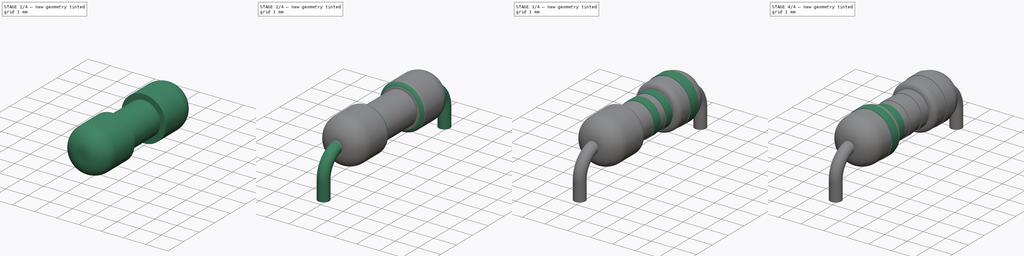
[diagram: build sequence overview — one tinted view per stage of 4, left to right]
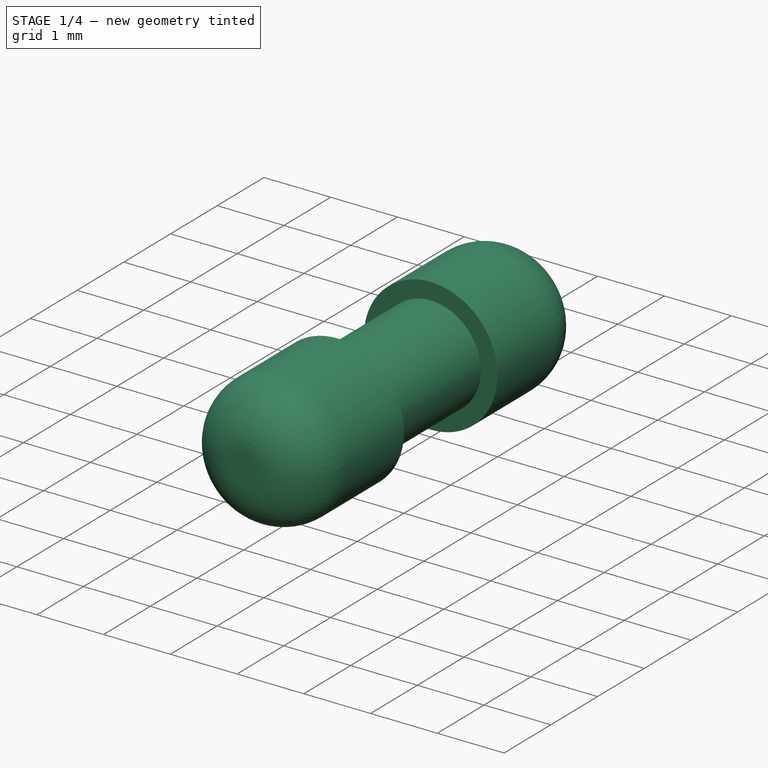
[diagram: stage 1 of 4 — iso view after this stage's code; geometry added in this stage tinted green]
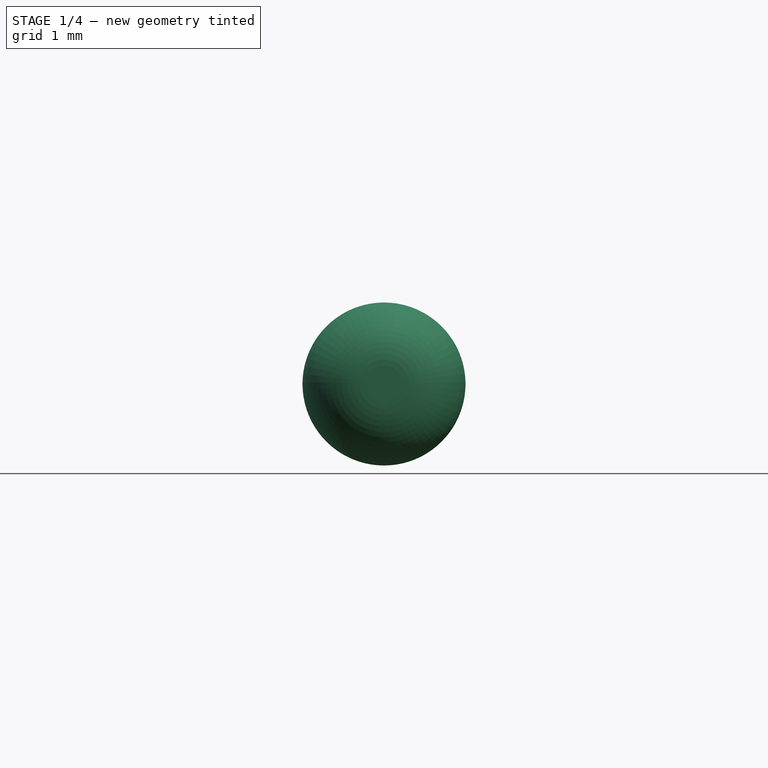
[diagram: stage 1 of 4 — front view after this stage's code; geometry added in this stage tinted green]
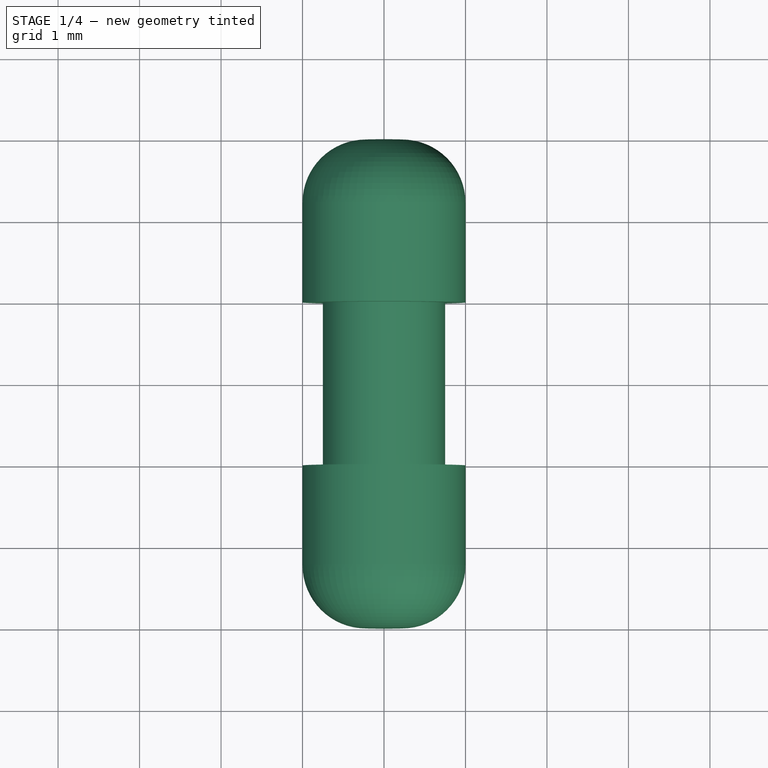
[diagram: stage 1 of 4 — top view after this stage's code; geometry added in this stage tinted green]
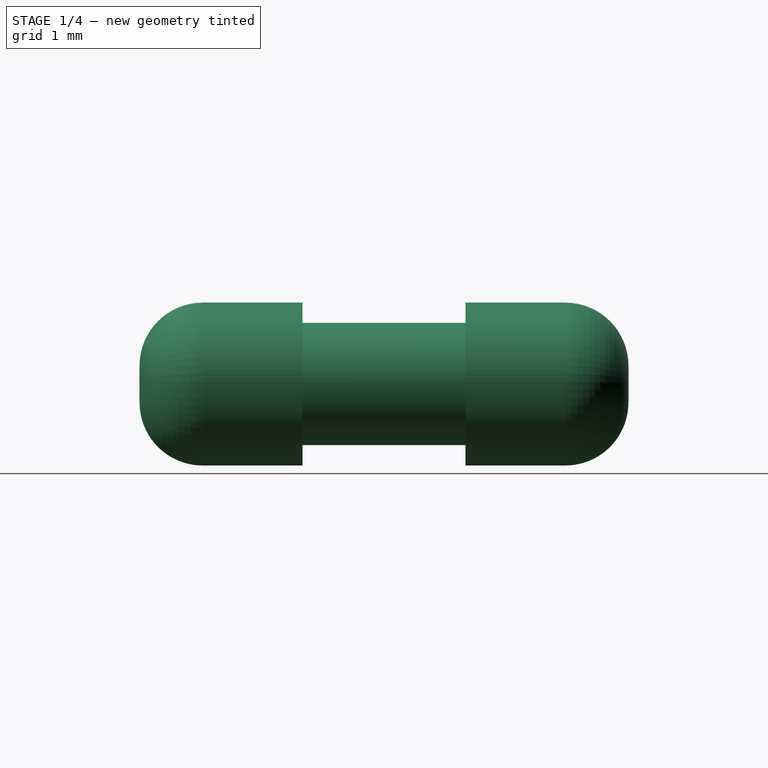
[diagram: stage 1 of 4 — right view after this stage's code; geometry added in this stage tinted green]
FCSTD DOCUMENT  (FreeCAD 0.19R16945 (Git))
Label: Resistors MF Simple
License: All rights reserved
LicenseURL: http://en.wikipedia.org/wiki/All_rights_reserved
objects: Sketcher::SketchObject×8, PartDesign::Body×7, PartDesign::Pad×5, PartDesign::Mirrored×2, PartDesign::Revolution×1, PartDesign::AdditivePipe×1, Spreadsheet::Sheet×1, PartDesign::Fillet×1
note: 32 computed .brp shape members not serialized (recipe doc carries the construction recipe); baked Part::Feature solids carry a one-line shape summary decoded from their .brp

FEATURE [PartDesign::Body] Body006  label="Ring_5_Brown_1%"
  Group = -> [Sketch007,Pad004]
  Origin = -> Origin006
  Tip = -> Pad004
FEATURE [Sketcher::SketchObject] Sketch044
  AttachmentOffset = pos=(0,0,0) rot=(0,0,1;3.14159rad)
  MapMode = 5
  Placement = pos=(0,0,0) rot=(0.57735,-0.57735,0.57735;4.18879rad)
  Support = -> [YZ_Plane071]
  expr: Constraints[18] = Spreadsheet.lead_diameter / 2 - 0.025mm
  expr: Constraints[13] = Spreadsheet.body_length_thick
  expr: Constraints[11] = Spreadsheet.body_diameter_thick / 2
  expr: Constraints[10] = Spreadsheet.body_diameter_mid / 2
  expr: Constraints[12] = Spreadsheet.body_length_mid / 2
  sketch-geometry (7):
    g0: LineSegment StartX=0 StartY=0 StartZ=0 EndX=0 EndY=0.75 EndZ=0
    g1: LineSegment StartX=0 StartY=0.75 StartZ=0 EndX=-1 EndY=0.75 EndZ=0
    g2: LineSegment StartX=-1 StartY=0.75 StartZ=0 EndX=-1 EndY=1 EndZ=0
    g3: LineSegment StartX=-1 StartY=1 StartZ=0 EndX=-2.225 EndY=1 EndZ=0
    g4: LineSegment StartX=-3 StartY=0 StartZ=0 EndX=0 EndY=0 EndZ=0
    g5: LineSegment StartX=-3 StartY=0 StartZ=0 EndX=-3 EndY=0.225 EndZ=0
    g6: ArcOfCircle CenterX=-2.225 CenterY=0.225 CenterZ=0 NormalX=0 NormalY=0 NormalZ=1 AngleXU=0 Radius=0.775 StartAngle=1.5708 EndAngle=3.14159
  constraints (19):
    c: Coincident(g-1,g0)
    c: PointOnObject(g0,g-2)
    c: Coincident(g0,g1)
    c: Horizontal(g1)
    c: Coincident(g1,g2)
    c: Vertical(g2)
    c: Coincident(g2,g3)
    c: Horizontal(g3)
    c: Coincident(g4,g0)
    c: Horizontal(g4)
    c: DistanceY(g0,g0) = 0.75
    c: DistanceY(g0,g2) = 1
    c: DistanceX(g1,g1) = 1
    c: DistanceX(g4,g2) = 2
    c: Coincident(g4,g5)
    c: Vertical(g5)
    c: Tangent(g3,g6) = -1.5708
    c: Tangent(g5,g6) = 1.5708
    c: DistanceY(g4,g5) = 0.225
FEATURE [PartDesign::Revolution] Revolution009
  Angle = 360
  Axis = (1e-16,1,-1e-16)
  Base = (0,0,0)
  Placement = pos=(0,0,0) rot=(0.57735,0.57735,0.57735;2.0944rad)
  Profile = -> Sketch044
  ReferenceAxis = -> Y_Axis071
  Refine = true
FEATURE [PartDesign::Mirrored] Mirrored013
  BaseFeature = -> Revolution009
  MirrorPlane = -> XZ_Plane071
  Originals = -> [Revolution009]
  Placement = pos=(0,0,0) rot=(0.57735,0.57735,0.57735;2.0944rad)
  Refine = true
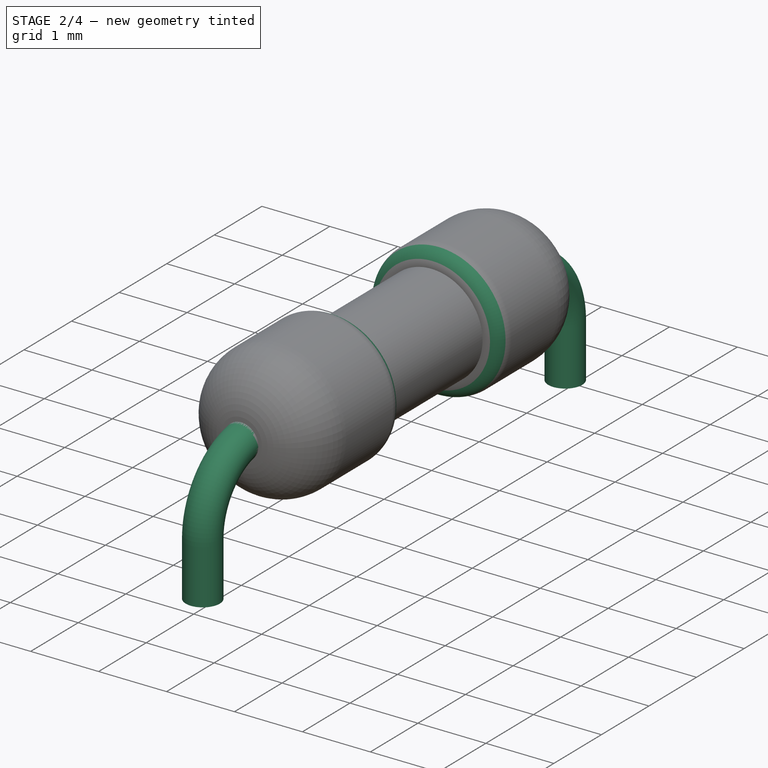
[diagram: stage 2 of 4 — iso view after this stage's code; geometry added in this stage tinted green]
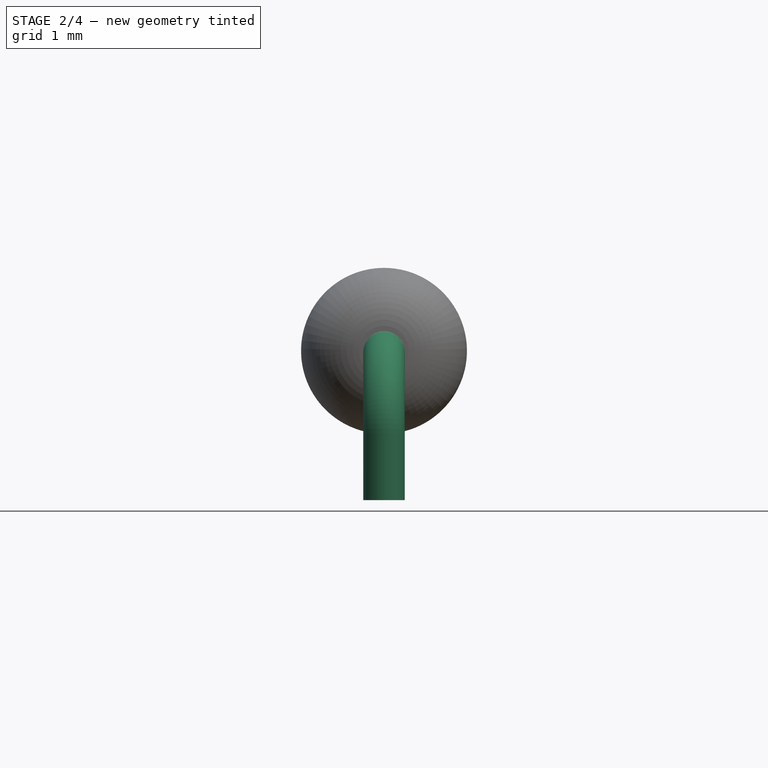
[diagram: stage 2 of 4 — front view after this stage's code; geometry added in this stage tinted green]
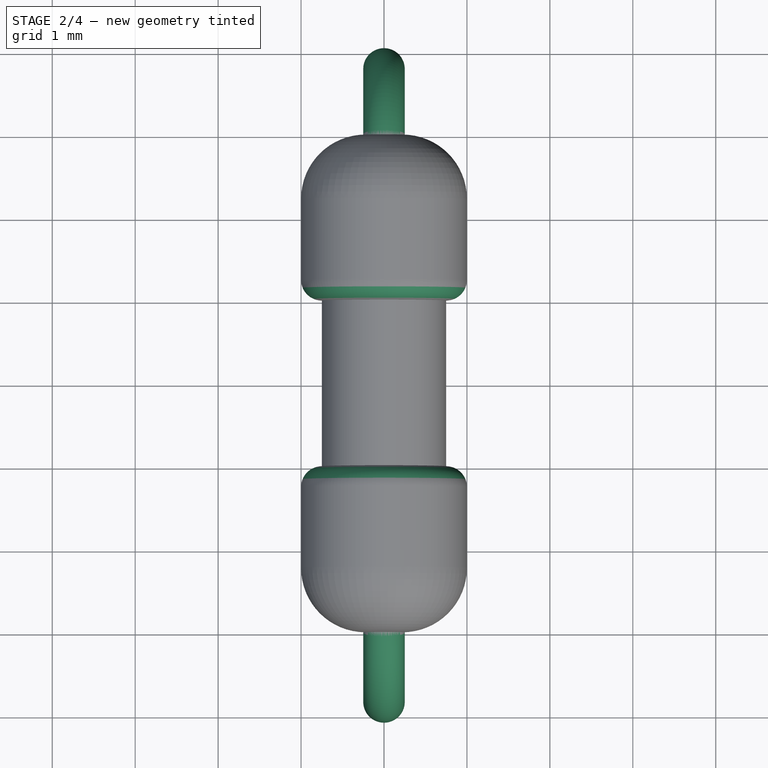
[diagram: stage 2 of 4 — top view after this stage's code; geometry added in this stage tinted green]
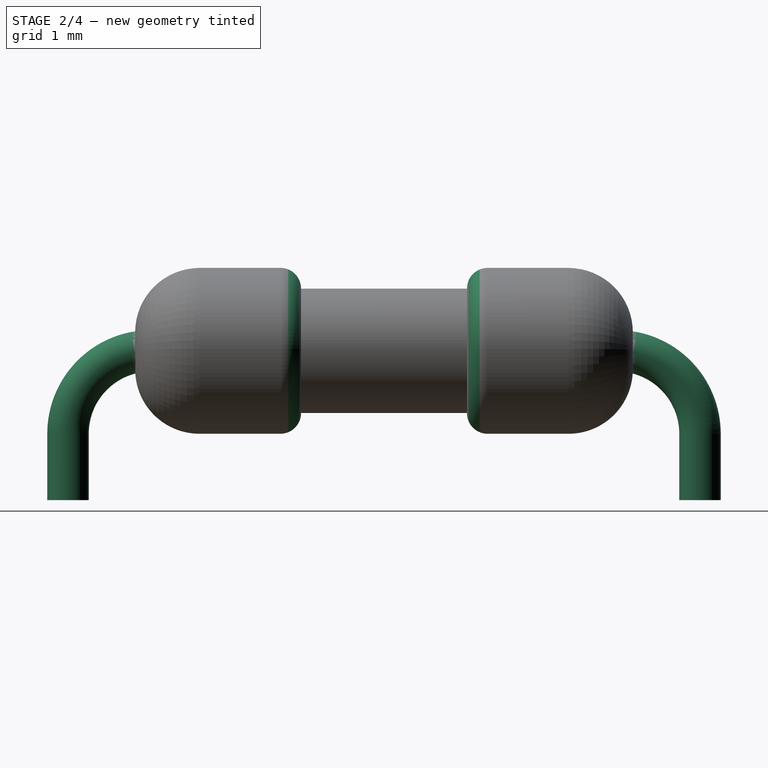
[diagram: stage 2 of 4 — right view after this stage's code; geometry added in this stage tinted green]
FEATURE [Sketcher::SketchObject] Sketch045
  MapMode = 5
  Placement = pos=(0,0,0) rot=(0.57735,0.57735,0.57735;2.0944rad)
  Support = -> [YZ_Plane072]
  expr: Constraints[7] = Spreadsheet.lead_bend_radius
  expr: Constraints[3] = Spreadsheet.lead_length
  expr: Constraints[4] = Spreadsheet.lead_pitch / 2
  sketch-geometry (3):
    g0: LineSegment StartX=0 StartY=0 StartZ=0 EndX=-2.81 EndY=-4e-16 EndZ=0
    g1: ArcOfCircle CenterX=-2.81 CenterY=-1 CenterZ=0 NormalX=0 NormalY=0 NormalZ=1 AngleXU=0 Radius=1 StartAngle=1.5708 EndAngle=3.14159
    g2: LineSegment StartX=-3.81 StartY=-1 StartZ=0 EndX=-3.81 EndY=-1.8 EndZ=0
  constraints (8):
    c: Coincident(g0,g-1)
    c: PointOnObject(g0,g-1)
    c: Vertical(g2)
    c: DistanceY(g2,g0) = 1.8
    c: DistanceX(g2,g0) = 3.81
    c: Tangent(g1,g0) = -1.5708
    c: Tangent(g2,g1) = -1.5708
    c: Radius(g1) = 1
FEATURE [Sketcher::SketchObject] Sketch046
  AttachmentOffset = pos=(0,0,0) rot=(0,0,1;-1.5708rad)
  MapMode = 5
  Placement = pos=(0,0,0) rot=(-0.57735,-0.57735,0.57735;4.18879rad)
  Support = -> [XZ_Plane072]
  expr: Constraints[1] = Spreadsheet.lead_diameter / 2
  sketch-geometry (1):
    g0: Circle CenterX=0 CenterY=0 CenterZ=0 NormalX=0 NormalY=0 NormalZ=1 AngleXU=0 Radius=0.25
  constraints (2):
    c: Coincident(g0,g-1)
    c: Radius(g0) = 0.25
FEATURE [PartDesign::AdditivePipe] AdditivePipe001
  AuxilleryCurvelinear = true
  AuxillerySpineTangent = false
  Binormal = (0,0,0)
  Mode = 0
  Placement = pos=(0,0,0) rot=(1,0,0;1.5708rad)
  Profile = -> Sketch046
  Refine = true
  Spine = -> Sketch045
  SpineTangent = false
  Transformation = 0
  Transition = 0
FEATURE [PartDesign::Mirrored] Mirrored014
  BaseFeature = -> AdditivePipe001
  MirrorPlane = -> XZ_Plane072
  Originals = -> [AdditivePipe001]
  Placement = pos=(0,0,0) rot=(1,0,0;1.5708rad)
FEATURE [PartDesign::Body] Body072  label="LeadsSimple"
  Group = -> [Sketch045,Sketch046,AdditivePipe001,Mirrored014]
  Origin = -> Origin072
  Tip = -> Mirrored014
FEATURE [Spreadsheet::Sheet] Spreadsheet
  cells = A3=body_length_mid; B3(body_length_mid)==2mm; A4=body_length_thick; B4(body_length_thick)==2mm; A5=body_length_cap; B5(body_length_cap)==0.25mm; A6=body_diameter_mid; B6(body_diameter_mid)==1.5mm; A7=body_diameter_thick; B7(body_diameter_thick)==2mm; A8=lead_diameter; B8(lead_diameter)==0.5mm; A9=lead_pitch; B9(lead_pitch)==3 * 2.54mm; A10=lead_bend_radius; B10(lead_bend_radius)==1mm; A11=lead_length; B11(lead_length)==1.8mm; A12=ring_width; B12(ring_width)==0.4mm; A13=ring_pitch; B13(ring_pitch)==0.75mm; A14=ring_thickness; B14(ring_thickness)==0.025mm; A15=ring_pitch_tolerance; B15(ring_pitch_tolerance)==1.25mm
FEATURE [PartDesign::Fillet] Fillet
  Base = -> Mirrored013 [Edge2,Edge9]
  BaseFeature = -> Mirrored013
  Placement = pos=(0,0,0) rot=(0.57735,0.57735,0.57735;2.0944rad)
  Radius = 0.249
  expr: Radius = Spreadsheet.lead_diameter / 2 - 0.001mm
FEATURE [PartDesign::Body] Body071  label="BodySimple"
  Group = -> [Sketch044,Revolution009,Mirrored013,Fillet]
  Origin = -> Origin071
  Tip = -> Fillet
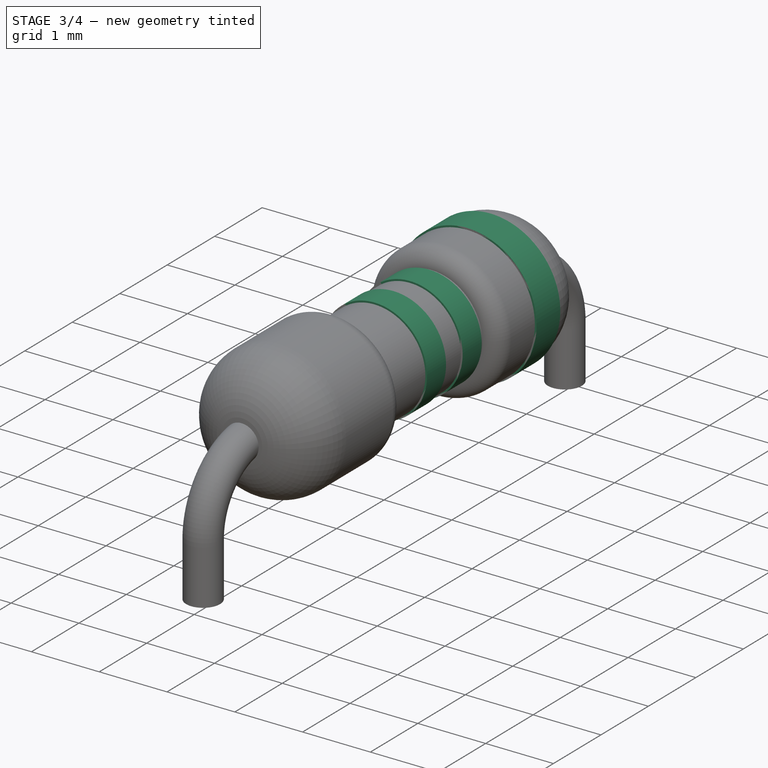
[diagram: stage 3 of 4 — iso view after this stage's code; geometry added in this stage tinted green]
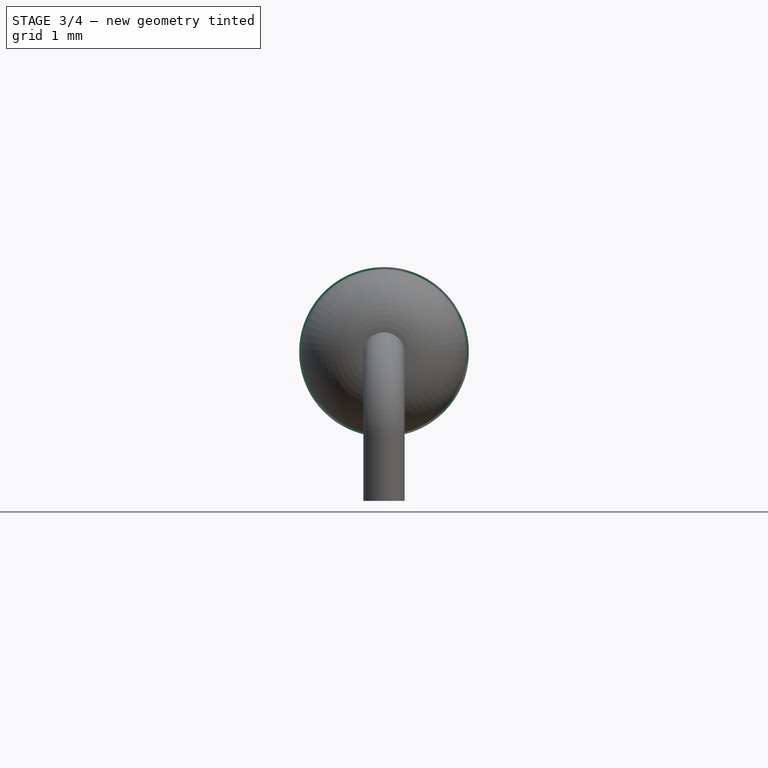
[diagram: stage 3 of 4 — front view after this stage's code; geometry added in this stage tinted green]
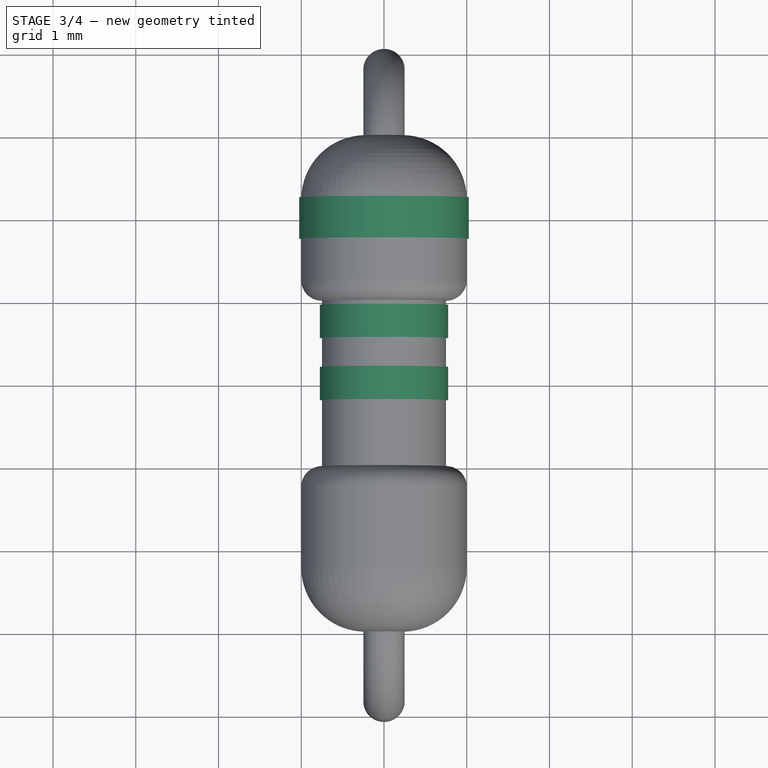
[diagram: stage 3 of 4 — top view after this stage's code; geometry added in this stage tinted green]
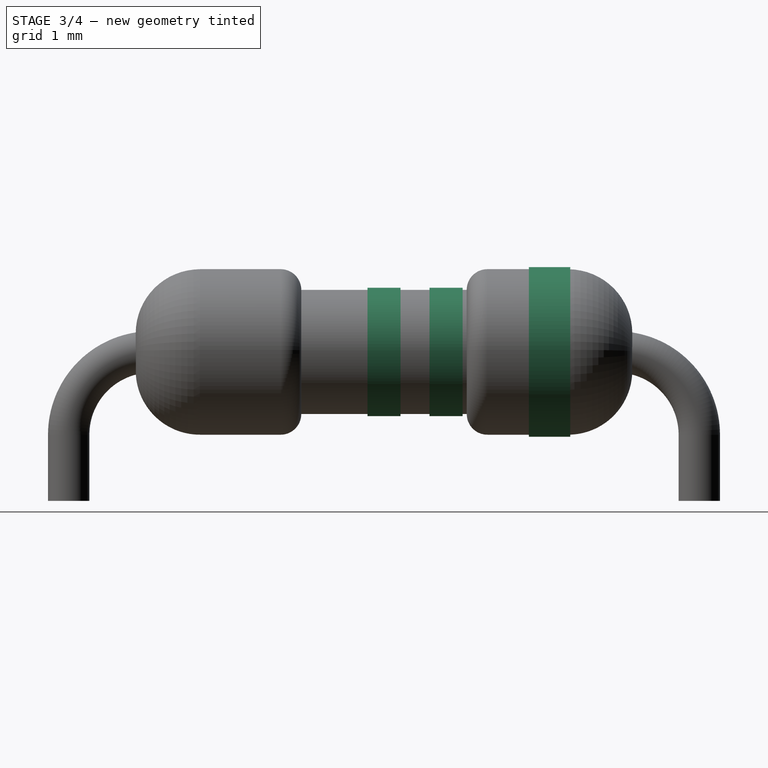
[diagram: stage 3 of 4 — right view after this stage's code; geometry added in this stage tinted green]
FEATURE [PartDesign::Body] Body003  label="Ring_2"
  Group = -> [Sketch004,Pad001]
  Origin = -> Origin003
  Tip = -> Pad001
FEATURE [Sketcher::SketchObject] Sketch005
  AttachmentOffset = pos=(0,0,0) rot=(0,0,1;-1.5708rad)
  MapMode = 5
  Placement = pos=(0,0,0) rot=(-0.57735,-0.57735,0.57735;4.18879rad)
  Support = -> [XZ_Plane004]
  expr: Constraints[1] = Spreadsheet.body_diameter_mid / 2 + Spreadsheet.ring_thickness
  sketch-geometry (1):
    g0: Circle CenterX=0 CenterY=0 CenterZ=0 NormalX=0 NormalY=0 NormalZ=1 AngleXU=0 Radius=0.775
  constraints (2):
    c: Coincident(g0,g-1)
    c: Radius(g0) = 0.775
FEATURE [PartDesign::Pad] Pad002
  Length = 0.4
  Length2 = 100
  Midplane = true
  Placement = pos=(0,0,0) rot=(1,0,0;1.5708rad)
  Profile = -> Sketch005
  Type = 0
  expr: Length = Spreadsheet.ring_width
FEATURE [PartDesign::Body] Body004  label="Ring_3"
  Group = -> [Sketch005,Pad002]
  Origin = -> Origin004
  Tip = -> Pad002
FEATURE [Sketcher::SketchObject] Sketch006
  AttachmentOffset = pos=(0,0,-0.75) rot=(0,0,1;-1.5708rad)
  MapMode = 5
  Placement = pos=(0,0.75,2e-16) rot=(-0.57735,-0.57735,0.57735;4.18879rad)
  Support = -> [XZ_Plane005]
  expr: AttachmentOffset.Base.z = -Spreadsheet.ring_pitch
  expr: Constraints[1] = Spreadsheet.body_diameter_mid / 2 + Spreadsheet.ring_thickness
  sketch-geometry (1):
    g0: Circle CenterX=0 CenterY=0 CenterZ=0 NormalX=0 NormalY=0 NormalZ=1 AngleXU=0 Radius=0.775
  constraints (2):
    c: Coincident(g0,g-1)
    c: Radius(g0) = 0.775
FEATURE [PartDesign::Pad] Pad003
  Length = 0.4
  Length2 = 100
  Midplane = true
  Placement = pos=(0,0,0) rot=(1,0,0;1.5708rad)
  Profile = -> Sketch006
  Reversed = true
  Type = 0
  expr: Length = Spreadsheet.ring_width
FEATURE [PartDesign::Body] Body005  label="Ring_4"
  Group = -> [Sketch006,Pad003]
  Origin = -> Origin005
  Tip = -> Pad003
FEATURE [Sketcher::SketchObject] Sketch007
  AttachmentOffset = pos=(0,0,-2) rot=(0,0,1;-1.5708rad)
  MapMode = 5
  Placement = pos=(0,2,4e-16) rot=(-0.57735,-0.57735,0.57735;4.18879rad)
  Support = -> [XZ_Plane006]
  expr: AttachmentOffset.Base.z = -Spreadsheet.ring_pitch - Spreadsheet.ring_pitch_tolerance
  expr: Constraints[1] = Spreadsheet.body_diameter_thick / 2 + Spreadsheet.ring_thickness
  sketch-geometry (1):
    g0: Circle CenterX=0 CenterY=0 CenterZ=0 NormalX=0 NormalY=0 NormalZ=1 AngleXU=0 Radius=1.025
  constraints (2):
    c: Coincident(g0,g-1)
    c: Radius(g0) = 1.025
FEATURE [PartDesign::Pad] Pad004
  Length = 0.5
  Length2 = 100
  Midplane = true
  Placement = pos=(0,0,0) rot=(1,0,0;1.5708rad)
  Profile = -> Sketch007
  Type = 0
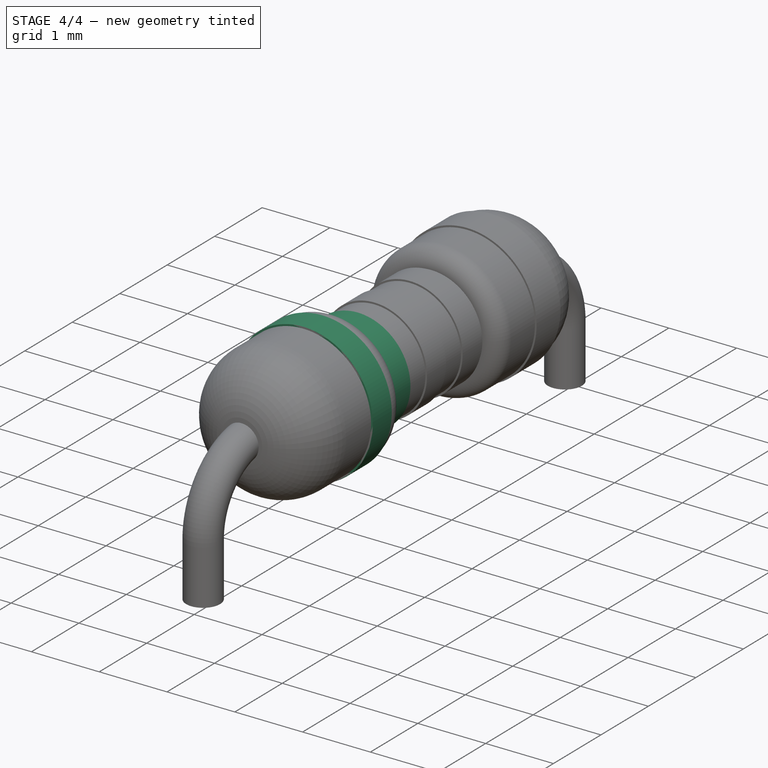
[diagram: stage 4 of 4 — iso view after this stage's code; geometry added in this stage tinted green]
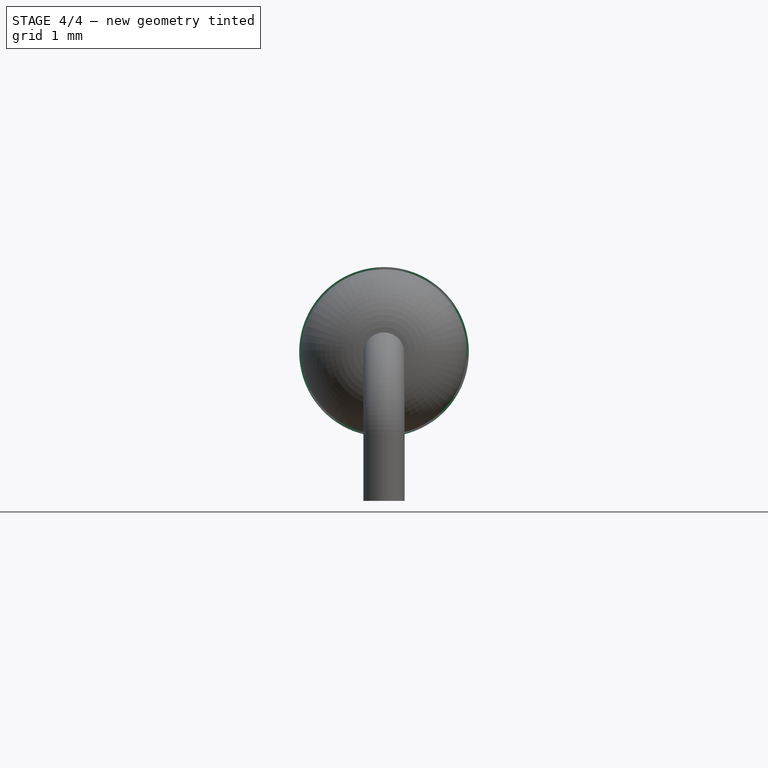
[diagram: stage 4 of 4 — front view after this stage's code; geometry added in this stage tinted green]
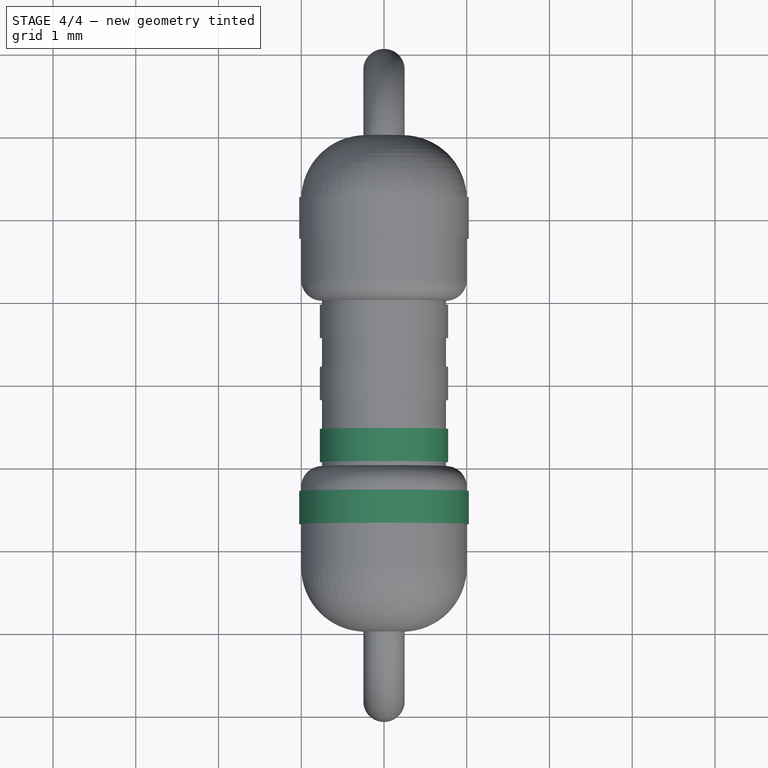
[diagram: stage 4 of 4 — top view after this stage's code; geometry added in this stage tinted green]
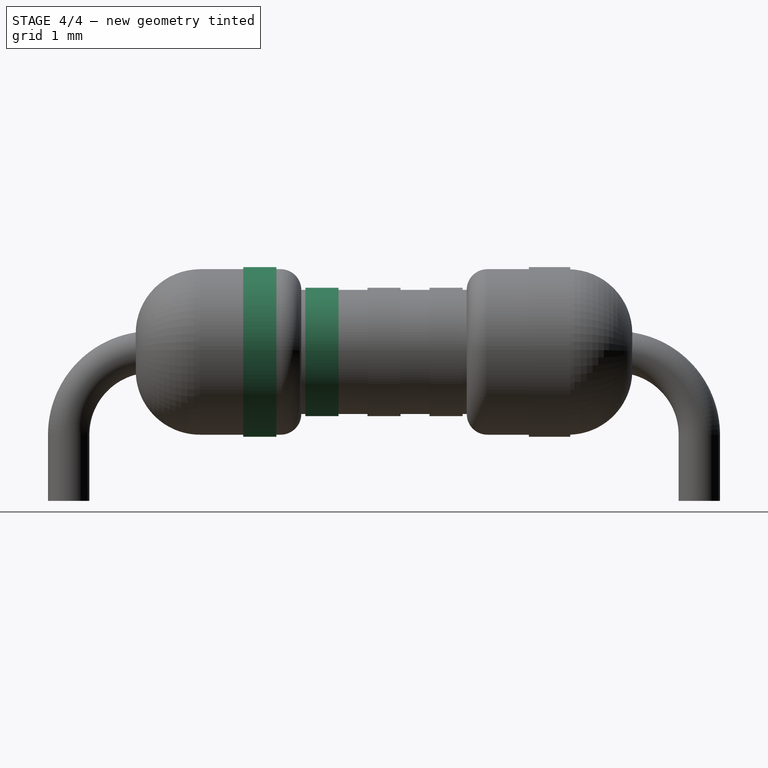
[diagram: stage 4 of 4 — right view after this stage's code; geometry added in this stage tinted green]
FEATURE [Sketcher::SketchObject] Sketch003
  AttachmentOffset = pos=(0,0,1.5) rot=(0,0,1;-1.5708rad)
  MapMode = 5
  Placement = pos=(0,-1.5,-3e-16) rot=(-0.57735,-0.57735,0.57735;4.18879rad)
  Support = -> [XZ_Plane002]
  expr: AttachmentOffset.Base.z = Spreadsheet.ring_pitch * 2
  expr: Constraints[1] = Spreadsheet.body_diameter_thick / 2 + Spreadsheet.ring_thickness
  sketch-geometry (1):
    g0: Circle CenterX=0 CenterY=0 CenterZ=0 NormalX=0 NormalY=0 NormalZ=1 AngleXU=0 Radius=1.025
  constraints (2):
    c: Coincident(g0,g-1)
    c: Radius(g0) = 1.025
FEATURE [PartDesign::Pad] Pad
  Length = 0.4
  Length2 = 100
  Midplane = true
  Placement = pos=(0,0,0) rot=(1,0,0;1.5708rad)
  Profile = -> Sketch003
  Type = 0
  expr: Length = Spreadsheet.ring_width
FEATURE [PartDesign::Body] Body002  label="Ring_1"
  Group = -> [Sketch003,Pad]
  Origin = -> Origin002
  Tip = -> Pad
FEATURE [Sketcher::SketchObject] Sketch004
  AttachmentOffset = pos=(0,0,0.75) rot=(0,0,1;-1.5708rad)
  MapMode = 5
  Placement = pos=(0,-0.75,-2e-16) rot=(-0.57735,-0.57735,0.57735;4.18879rad)
  Support = -> [XZ_Plane003]
  expr: AttachmentOffset.Base.z = Spreadsheet.ring_pitch
  expr: Constraints[1] = Spreadsheet.body_diameter_mid / 2 + Spreadsheet.ring_thickness
  sketch-geometry (1):
    g0: Circle CenterX=0 CenterY=0 CenterZ=0 NormalX=0 NormalY=0 NormalZ=1 AngleXU=0 Radius=0.775
  constraints (2):
    c: Coincident(g0,g-1)
    c: Radius(g0) = 0.775
FEATURE [PartDesign::Pad] Pad001
  Length = 0.4
  Length2 = 100
  Midplane = true
  Placement = pos=(0,0,0) rot=(1,0,0;1.5708rad)
  Profile = -> Sketch004
  Type = 0
  expr: Length = Spreadsheet.ring_width
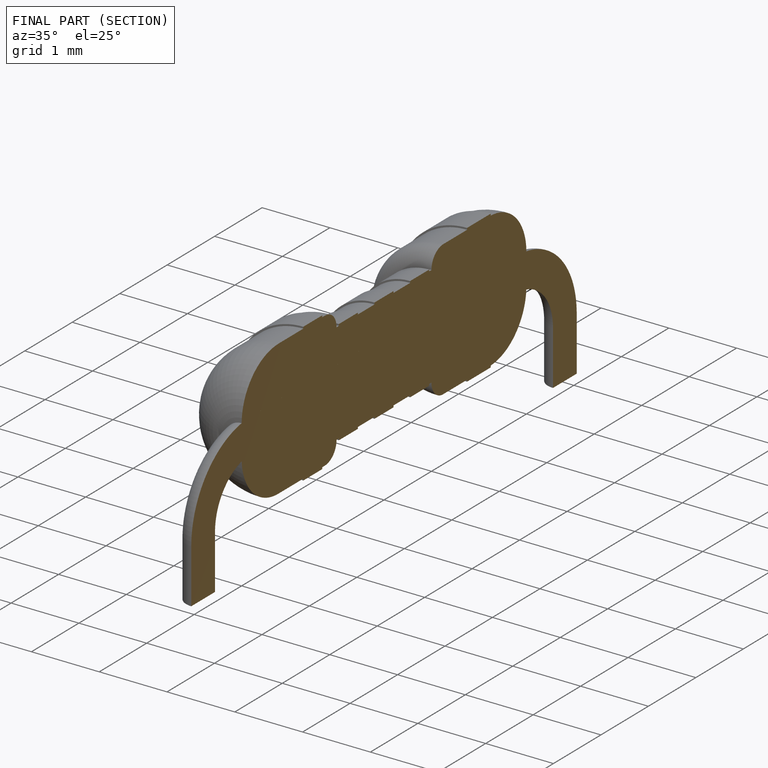
[diagram: finished part — half-section view (interior)]
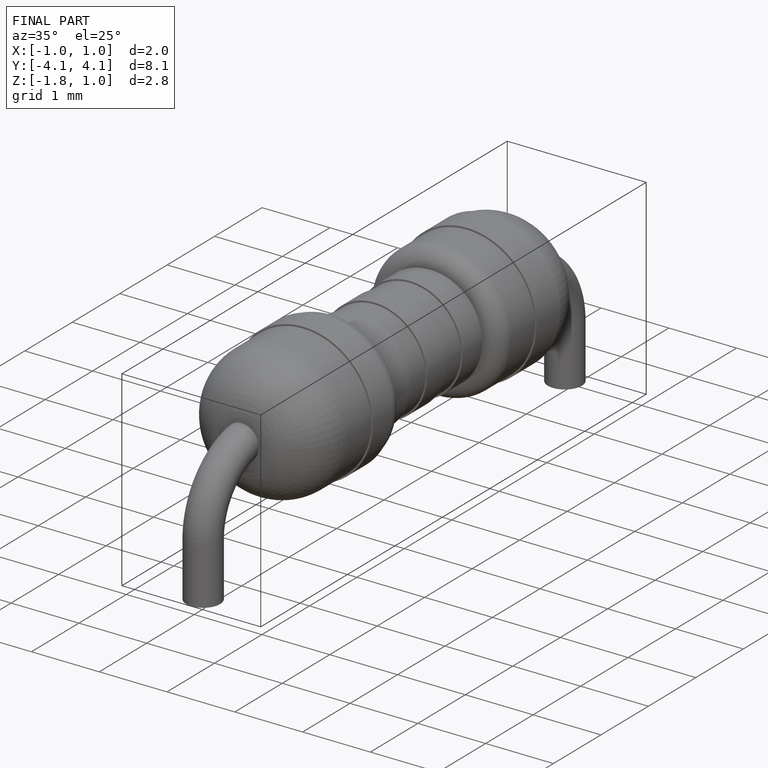
[diagram: finished part — iso view with bounding-box wireframe]
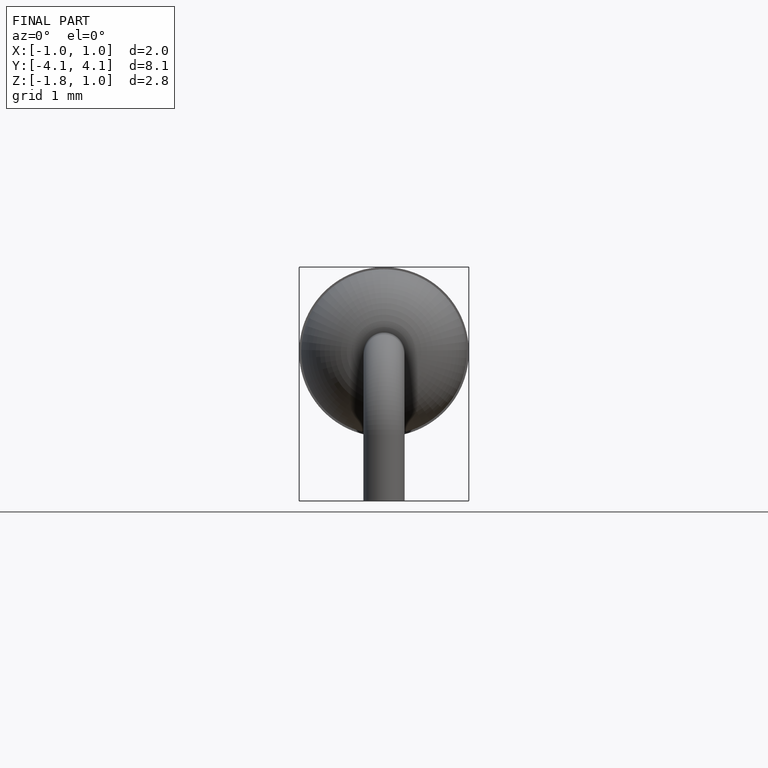
[diagram: finished part — front view with bounding-box wireframe]
